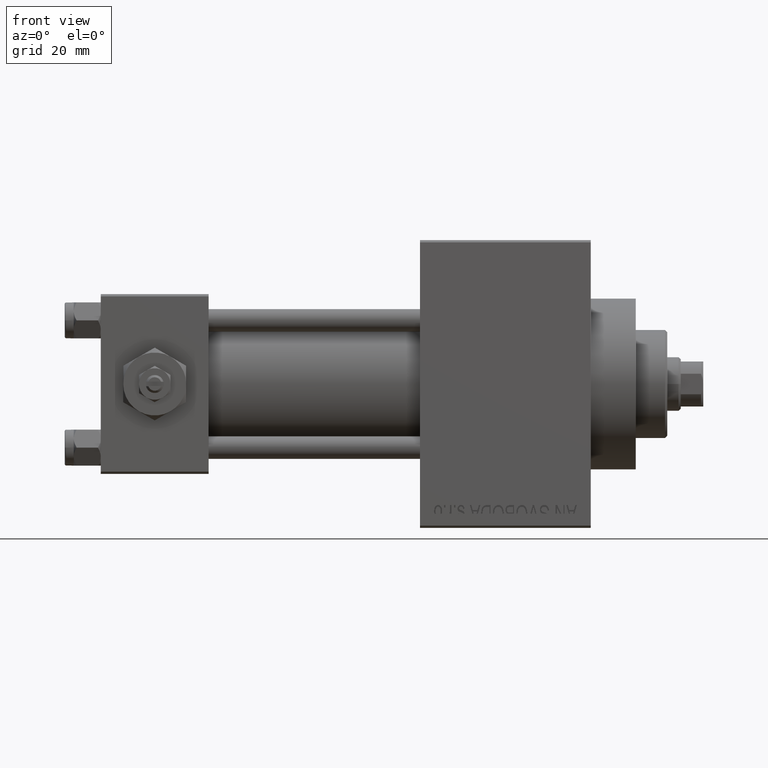
[diagram: clean part render]
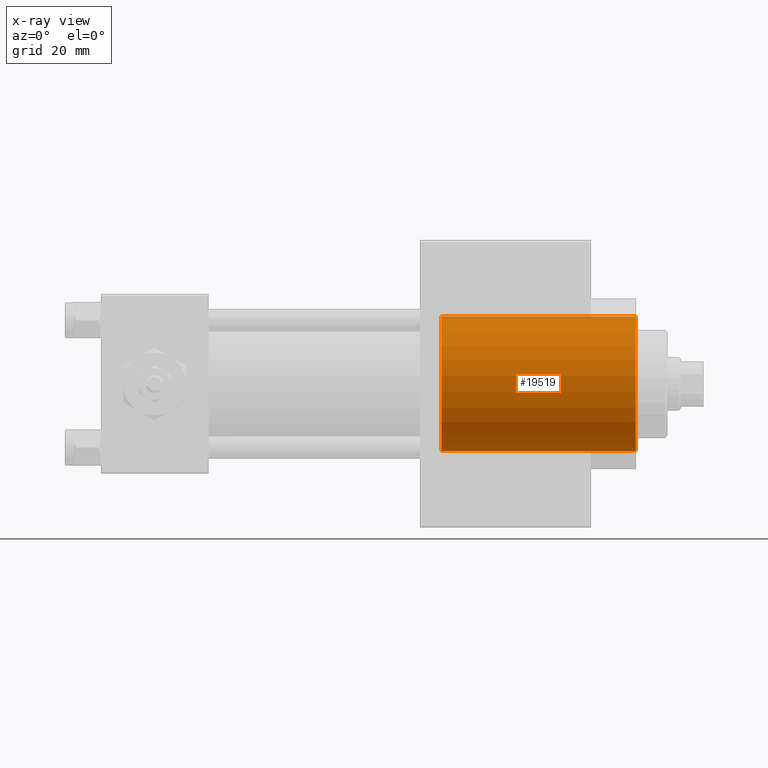
[diagram: x-ray — body ghosted, one internal face saturated and labeled with its STEP entity id]
A machine part, front view, then the same camera in x-ray: the body is ghosted and one INTERNAL B-rep face — a face not visible from any outside direction — is saturated and labeled: STEP entity #19519.
In plain terms, the highlighted cylindrical surface (partial cylindrical patch) has radius 15 mm, axis along (1, 0, 0).
Its self-contained STEP definition (entity closure, byte-faithful):
#330 = CYLINDRICAL_SURFACE ( 'NONE', #36348, 15.00000000000000000 ) ;
#2356 = CIRCLE ( 'NONE', #30683, 15.00000000000000000 ) ;
#4313 = EDGE_CURVE ( 'NONE', #39875, #14743, #2356, .T. ) ;
#4439 = EDGE_CURVE ( 'NONE', #29687, #39875, #30538, .T. ) ;
#5306 = CARTESIAN_POINT ( 'NONE',  ( 119.0000000000000142, 0.000000000000000000, -15.00000000000000000 ) ) ;
#5792 = EDGE_CURVE ( 'NONE', #6082, #14743, #28295, .T. ) ;
#6082 = VERTEX_POINT ( 'NONE', #31952 ) ;
#7037 = EDGE_LOOP ( 'NONE', ( #26752, #21703, #14263, #29992 ) ) ;
#10101 = CARTESIAN_POINT ( 'NONE',  ( 119.0000000000000142, 0.000000000000000000, 0.000000000000000000 ) ) ;
#11001 = VECTOR ( 'NONE', #45599, 1000.000000000000000 ) ;
#14263 = ORIENTED_EDGE ( 'NONE', *, *, #4313, .T. ) ;
#14621 = DIRECTION ( 'NONE',  ( 0.000000000000000000, 0.000000000000000000, -1.000000000000000000 ) ) ;
#14743 = VERTEX_POINT ( 'NONE', #5306 ) ;
#17794 = CARTESIAN_POINT ( 'NONE',  ( 75.73999999999999488, 0.000000000000000000, 0.000000000000000000 ) ) ;
#19519 = ADVANCED_FACE ( 'NONE', ( #45213 ), #330, .F. ) ;
#20529 = EDGE_CURVE ( 'NONE', #29687, #6082, #47399, .T. ) ;
#20585 = CARTESIAN_POINT ( 'NONE',  ( 119.0000000000000142, 1.836970198721029589E-15, 15.00000000000000000 ) ) ;
#21703 = ORIENTED_EDGE ( 'NONE', *, *, #4439, .T. ) ;
#24444 = DIRECTION ( 'NONE',  ( 1.000000000000000000, 0.000000000000000000, 0.000000000000000000 ) ) ;
#26752 = ORIENTED_EDGE ( 'NONE', *, *, #20529, .F. ) ;
#28295 = LINE ( 'NONE', #39664, #45699 ) ;
#29687 = VERTEX_POINT ( 'NONE', #40044 ) ;
#29992 = ORIENTED_EDGE ( 'NONE', *, *, #5792, .F. ) ;
#30538 = LINE ( 'NONE', #37959, #11001 ) ;
#30683 = AXIS2_PLACEMENT_3D ( 'NONE', #10101, #32063, #40457 ) ;
#31952 = CARTESIAN_POINT ( 'NONE',  ( 75.73999999999999488, 0.000000000000000000, -15.00000000000000000 ) ) ;
#32063 = DIRECTION ( 'NONE',  ( 1.000000000000000000, 0.000000000000000000, 0.000000000000000000 ) ) ;
#36348 = AXIS2_PLACEMENT_3D ( 'NONE', #41507, #41265, #14621 ) ;
#37959 = CARTESIAN_POINT ( 'NONE',  ( 75.73999999999999488, 1.836970198721029589E-15, 15.00000000000000000 ) ) ;
#39515 = DIRECTION ( 'NONE',  ( 0.000000000000000000, 0.000000000000000000, -1.000000000000000000 ) ) ;
#39664 = CARTESIAN_POINT ( 'NONE',  ( 75.73999999999999488, 0.000000000000000000, -15.00000000000000000 ) ) ;
#39875 = VERTEX_POINT ( 'NONE', #20585 ) ;
#40044 = CARTESIAN_POINT ( 'NONE',  ( 75.73999999999999488, 1.836970198721029589E-15, 15.00000000000000000 ) ) ;
#40457 = DIRECTION ( 'NONE',  ( 0.000000000000000000, 0.000000000000000000, -1.000000000000000000 ) ) ;
#41265 = DIRECTION ( 'NONE',  ( 1.000000000000000000, -0.000000000000000000, -0.000000000000000000 ) ) ;
#41507 = CARTESIAN_POINT ( 'NONE',  ( 75.73999999999999488, 0.000000000000000000, 0.000000000000000000 ) ) ;
#44269 = AXIS2_PLACEMENT_3D ( 'NONE', #17794, #24444, #39515 ) ;
#44338 = DIRECTION ( 'NONE',  ( 1.000000000000000000, -0.000000000000000000, -0.000000000000000000 ) ) ;
#45213 = FACE_OUTER_BOUND ( 'NONE', #7037, .T. ) ;
#45599 = DIRECTION ( 'NONE',  ( 1.000000000000000000, -0.000000000000000000, -0.000000000000000000 ) ) ;
#45699 = VECTOR ( 'NONE', #44338, 1000.000000000000000 ) ;
#47399 = CIRCLE ( 'NONE', #44269, 15.00000000000000000 ) ;